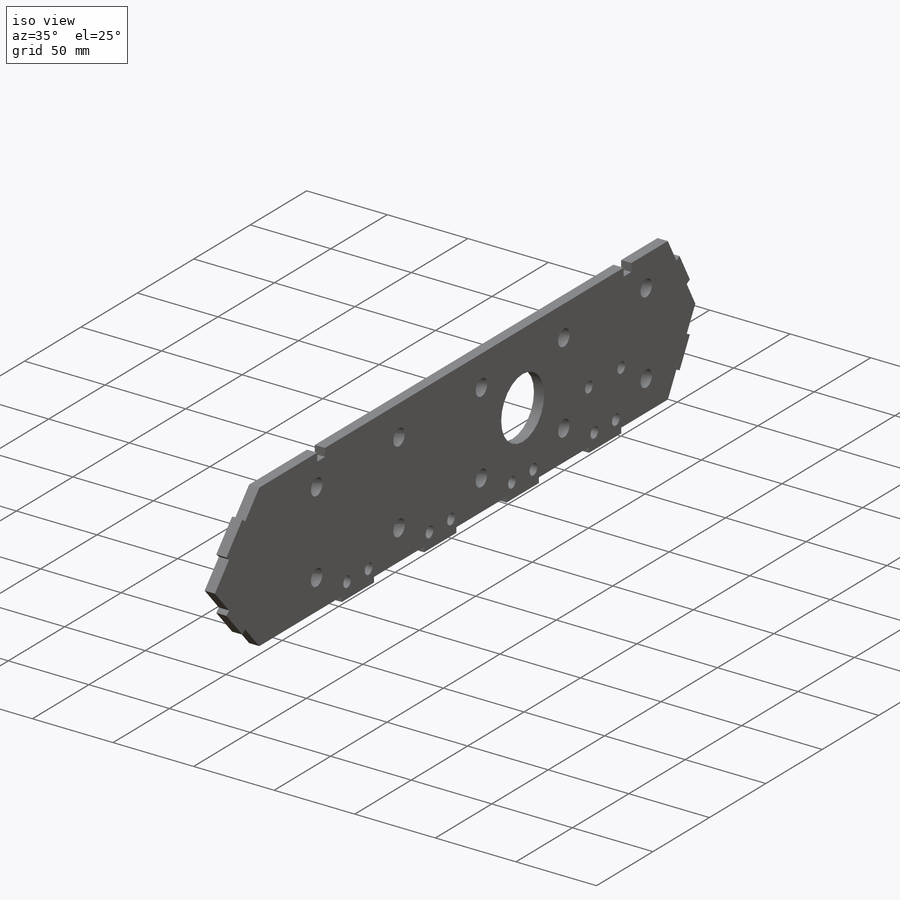
[diagram: iso view]
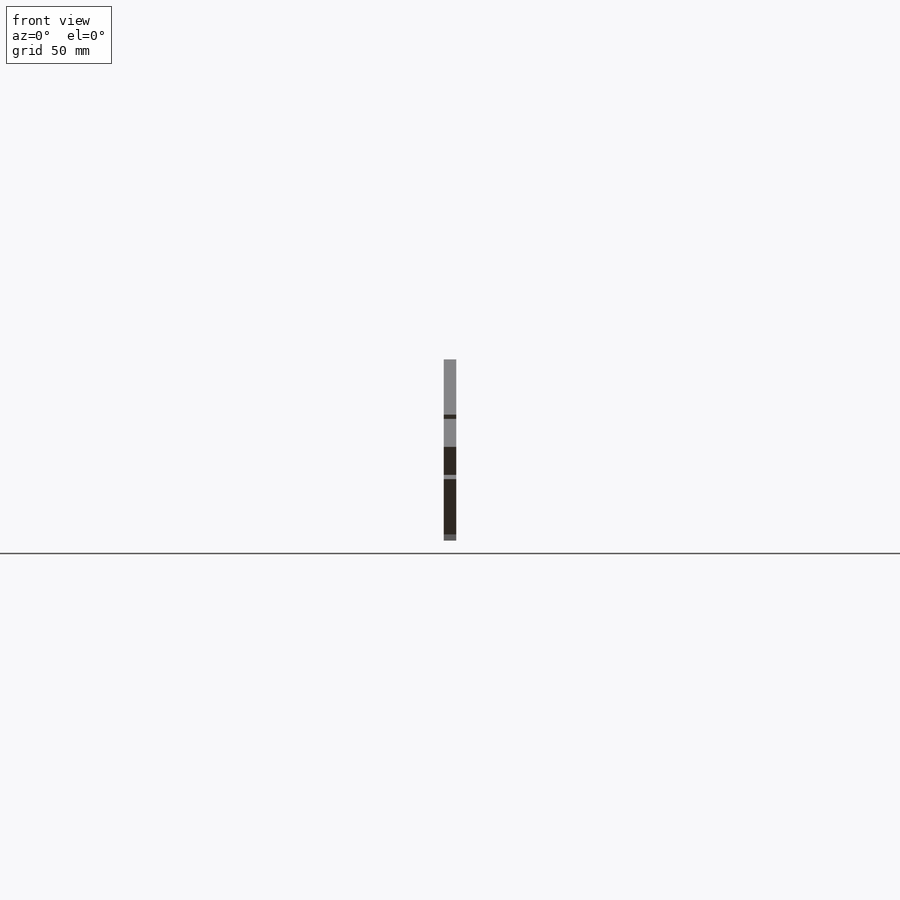
[diagram: front view]
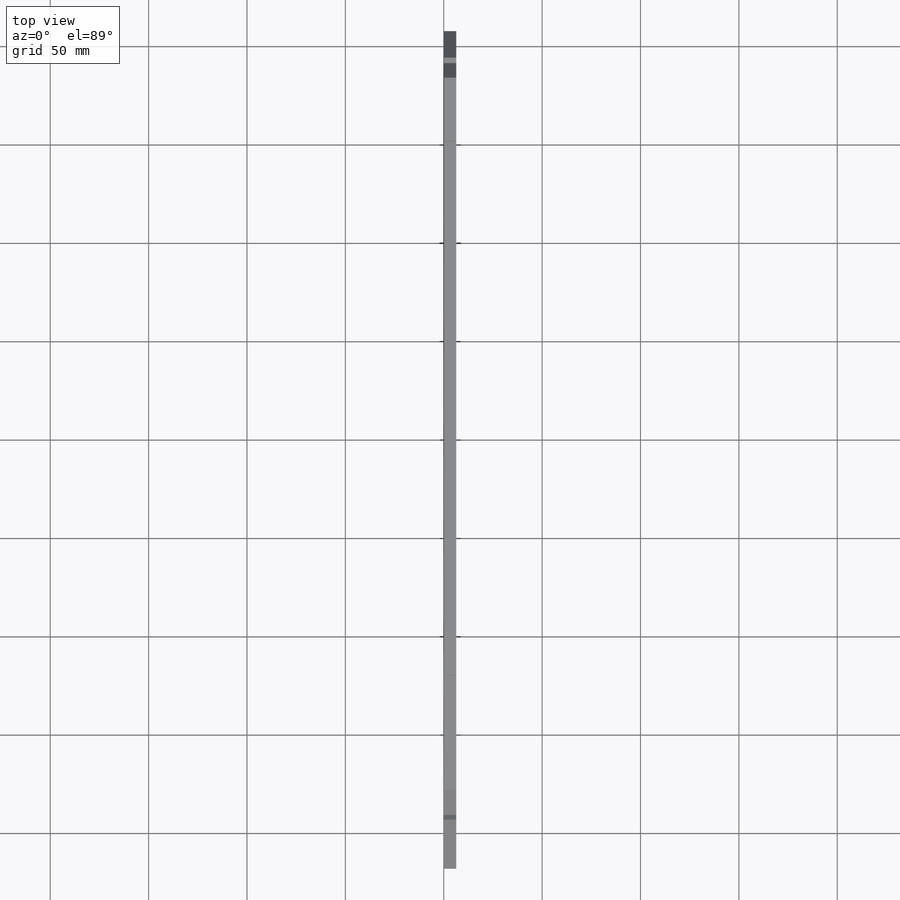
[diagram: top view]
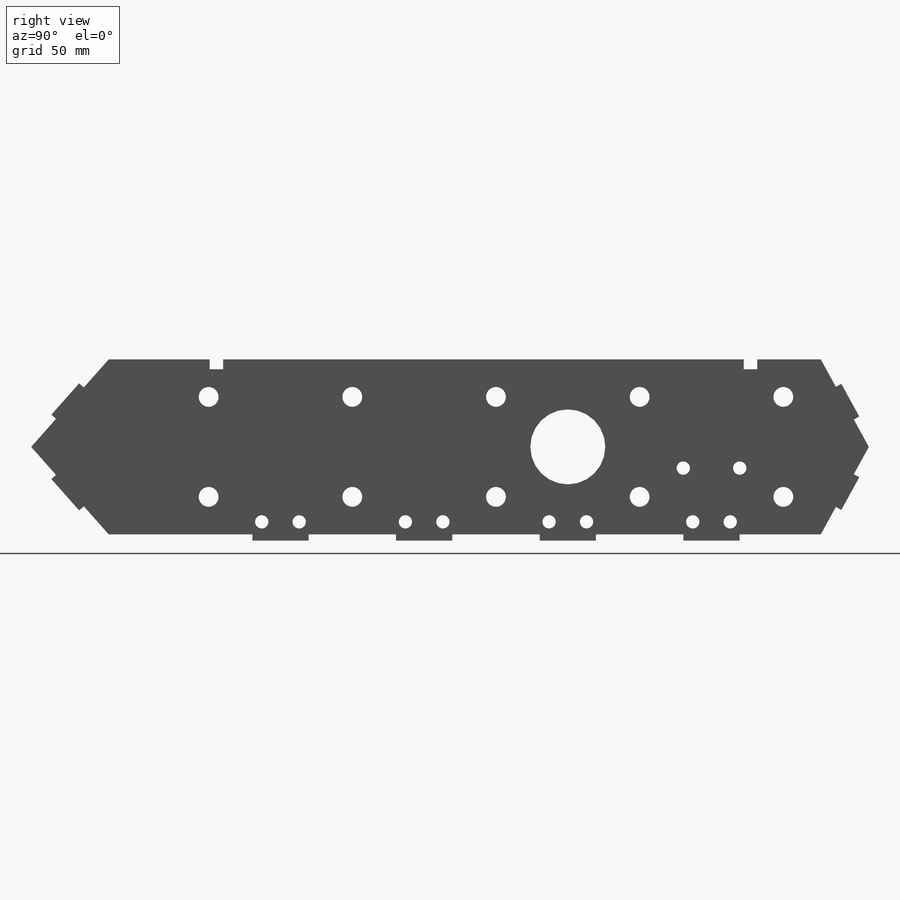
[diagram: right view]
SOLIDWORKS PART (.sldprt)
format: sldprt  version: not decoded by parser v0  size: 565,248 bytes
history: native  units: mm
features: sketch x16, extrude x5, hole x4, cut_extrude x3, material x1 (+13 scaffold rows collapsed)
feature tree (42):
  scaffold x13  (default folders/planes/origin — collapsed)
  material  "Plain Carbon Steel"
  sketch  "Sketch1"  dims[c1.D1=~9.285877mm c1.D3=~12.882042mm c1.D4=15.875mm c1.D5=101.6mm c1.D9=50.8mm c1.D10=67.31mm c1.D11=79.502mm c1.D12=46.736mm c2.D1=38.1mm c2.D2=50.8mm c2.D3=71.755mm c2.D6=254.0mm c2.D7=38.1mm c2.D8=38.1mm c3.D1=558.8mm c3.D2=88.9mm]
  extrude  "Boss-Extrude1"  Depth=6.35mm
  sketch  "Sketch2"
  extrude  "Boss-Extrude2"  Depth=6.35mm
  hole  "3/8 Clearance Hole2"  Diameter=10.0838mm Depth=6.35mm
  sketch  "Sketch6"  dims[D1=73.025mm D2=50.8mm D3=247.65mm D4=123.825mm]
  sketch  "Sketch5"  dims[hole-wizard template sketch: 60 standard entries collapsed; hole parameters kept: c18.Thru Hole Depth=6.35mm]
  hole  "3/8 Clearance Hole3"  Diameter=10.0838mm Depth=12.7mm
  sketch  "Sketch8"
  sketch  "Sketch7"  dims[hole-wizard template sketch: 50 standard entries collapsed; hole parameters above]
  sketch  "Sketch9"
  cut_extrude  "Cut-Extrude1"  [1 undecoded]
  sketch  "Sketch10"
  extrude  "Boss-Extrude3"  Depth=6.35mm
  sketch  "Sketch11"  dims[D1=3.175mm D2=15.875mm D3=15.875mm D4=15.875mm D5=15.875mm D6=19.05mm D7=19.05mm D8=19.05mm D9=19.05mm]
  extrude  "Boss-Extrude4"  Depth=6.35mm
  sketch  "Sketch12"  dims[D1=~104.234278mm]
  cut_extrude  "Cut-Extrude2"  [1 undecoded]
  sketch  "Sketch13"  dims[c1.D1=4.7625mm c1.D2=6.35mm c2.D1=4.7625mm c2.D2=6.35mm c3.D1=0.254mm]
  cut_extrude  "Cut-Extrude3"  [1 undecoded]
  hole  "1/4 Clearance Hole1"  Diameter=6.7564mm Depth=6.35mm
  sketch  "Sketch15"
  sketch  "Sketch14"  dims[hole-wizard template sketch: 61 standard entries collapsed; hole parameters above]
  hole  "1/4 Clearance Hole2"  Diameter=6.7564mm Depth=6.35mm
  sketch  "Sketch17"  dims[D1=19.05mm D2=6.35mm]
  sketch  "Sketch16"  dims[hole-wizard template sketch: 61 standard entries collapsed; hole parameters above]
  sketch  "Sketch18"  dims[c1.D1=3.175mm c1.D2=~30.305145mm c2.D1=3.175mm c2.D2=~32.846867mm c3.D1=3.175mm c3.D2=~33.433418mm c4.D1=3.175mm c4.D2=~32.222463mm c5.D1=3.175mm c5.D2=28.575mm c5.D3=6.35mm]
  extrude  "Boss-Extrude5"  [1 undecoded]
decode coverage: 19 of 28 modeling features carry decoded parameters
note: ~ marks probable driven/reference dimensions
note: 4 parameter values undecoded
summary: no parameter record found for 4 features; Diameter pulled from absorbed wizard sketch
note: suppression state not decoded; provenance and decode notes live in map.json
